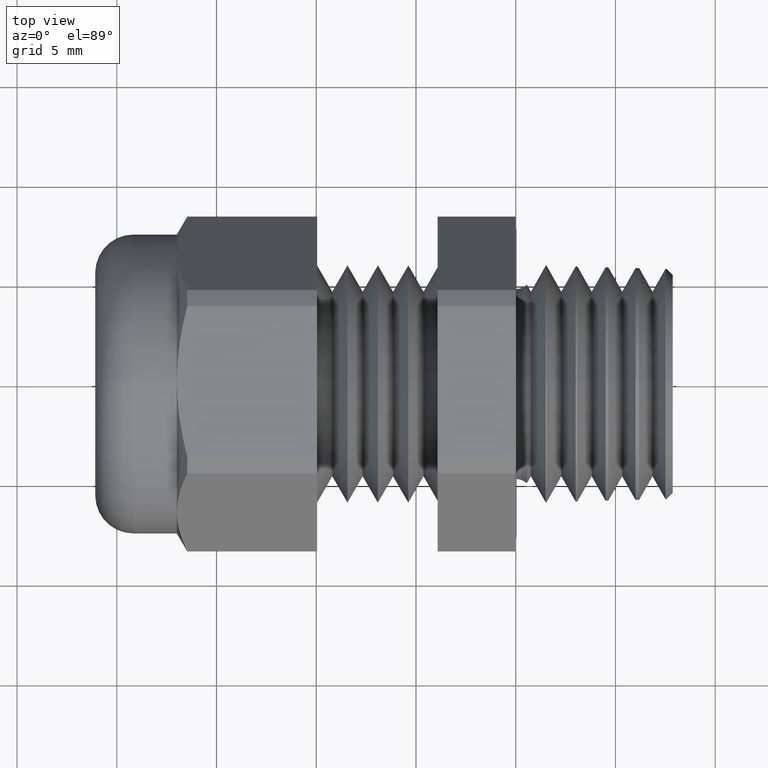
[diagram: clean part render]
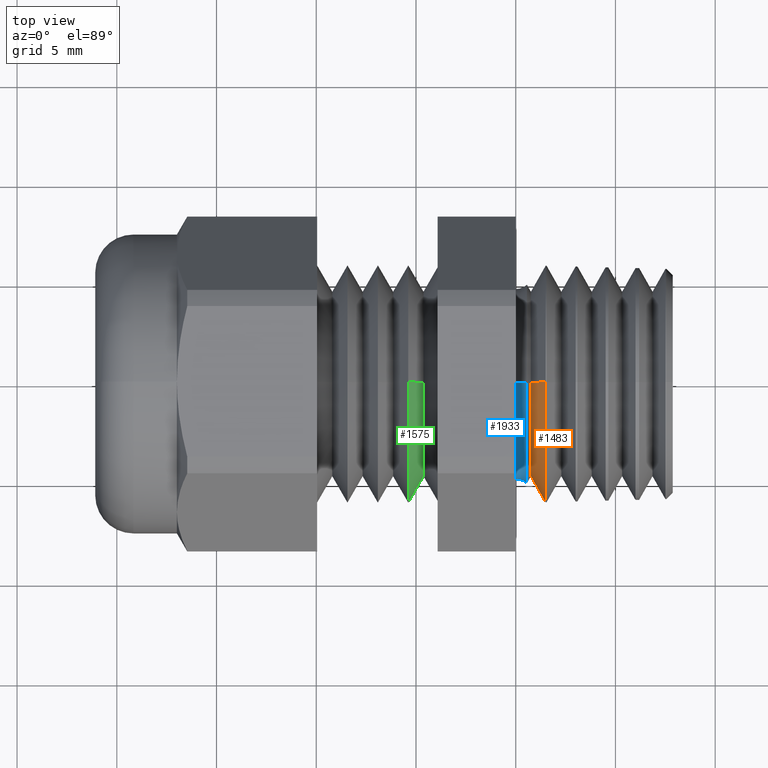
[diagram: same view with three faces highlighted in distinct colors, each labeled with its STEP entity id]
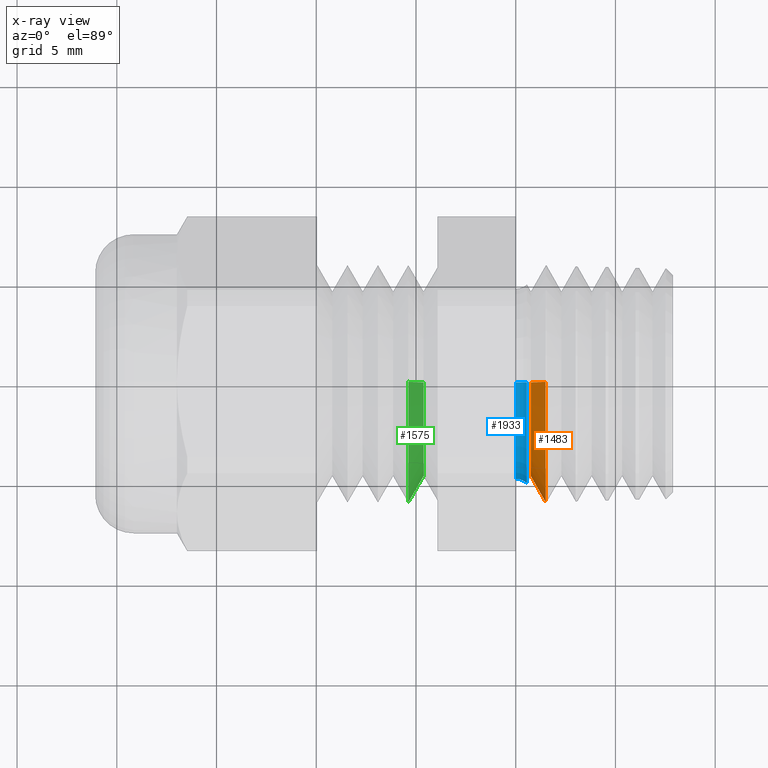
[diagram: x-ray of the same camera — body ghosted, the three highlighted faces saturated]
A machine part, top view with three faces highlighted in distinct colors.
The next image is the same camera in x-ray (body ghosted, the three faces saturated) — at least one of them is partly hidden behind the body in this view.
Their STEP definitions:

[orange] entity #1483 — the highlighted conical surface has half-angle 60 deg.
#141 = CARTESIAN_POINT ( 'NONE',  ( 0.02999998601249676000, 0.0000000000000000000, -0.1830384999999999700 ) ) ;
#585 = DIRECTION ( 'NONE',  ( 0.5000000000000003300, 0.0000000000000000000, -0.8660254037844383700 ) ) ;
#586 = VECTOR ( 'NONE', #585, 39.37007874015748100 ) ;
#587 = CARTESIAN_POINT ( 'NONE',  ( 0.02999998601249676000, 0.0000000000000000000, -0.1830384999999999700 ) ) ;
#588 = LINE ( 'NONE', #587, #586 ) ;
#648 = CARTESIAN_POINT ( 'NONE',  ( 0.02999998601249676000, 2.550270289256076500E-017, 0.1830384999999999700 ) ) ;
#778 = DIRECTION ( 'NONE',  ( 0.0000000000000000000, 0.0000000000000000000, -1.000000000000000000 ) ) ;
#779 = DIRECTION ( 'NONE',  ( -1.000000000000000000, 0.0000000000000000000, 0.0000000000000000000 ) ) ;
#780 = CARTESIAN_POINT ( 'NONE',  ( 0.05910637531212580000, 0.0000000000000000000, 0.0000000000000000000 ) ) ;
#781 = AXIS2_PLACEMENT_3D ( 'NONE', #780, #779, #778 ) ;
#782 = CIRCLE ( 'NONE', #781, 0.2334522450918377600 ) ;
#1476 = EDGE_LOOP ( 'NONE', ( #1554, #1553, #1478, #1477 ) ) ;
#1477 = ORIENTED_EDGE ( 'NONE', *, *, #2250, .T. ) ;
#1478 = ORIENTED_EDGE ( 'NONE', *, *, #2156, .T. ) ;
#1483 = ADVANCED_FACE ( 'NONE', ( #2826 ), #2825, .T. ) ;
#1553 = ORIENTED_EDGE ( 'NONE', *, *, #1582, .F. ) ;
#1554 = ORIENTED_EDGE ( 'NONE', *, *, #2102, .F. ) ;
#1582 = EDGE_CURVE ( 'NONE', #1779, #2188, #2971, .T. ) ;
#1779 = VERTEX_POINT ( 'NONE', #141 ) ;
#2095 = VERTEX_POINT ( 'NONE', #2442 ) ;
#2102 = EDGE_CURVE ( 'NONE', #2188, #2103, #2498, .T. ) ;
#2103 = VERTEX_POINT ( 'NONE', #2489 ) ;
#2156 = EDGE_CURVE ( 'NONE', #1779, #2095, #588, .T. ) ;
#2188 = VERTEX_POINT ( 'NONE', #648 ) ;
#2250 = EDGE_CURVE ( 'NONE', #2095, #2103, #782, .T. ) ;
#2442 = CARTESIAN_POINT ( 'NONE',  ( 0.05910637531212580000, 2.858965447054825100E-017, -0.2334522450918377300 ) ) ;
#2489 = CARTESIAN_POINT ( 'NONE',  ( 0.05910637531212580000, 0.0000000000000000000, 0.2334522450918377300 ) ) ;
#2490 = DIRECTION ( 'NONE',  ( 0.5000000000000003300, 1.060575238724906700E-016, 0.8660254037844383700 ) ) ;
#2491 = VECTOR ( 'NONE', #2490, 39.37007874015748100 ) ;
#2492 = CARTESIAN_POINT ( 'NONE',  ( 0.02999998601249676000, 2.241575131457327600E-017, 0.1830384999999999700 ) ) ;
#2498 = LINE ( 'NONE', #2492, #2491 ) ;
#2825 = CONICAL_SURFACE ( 'NONE', #2893, 0.1830384999999999700, 1.047197551196597400 ) ;
#2826 = FACE_OUTER_BOUND ( 'NONE', #1476, .T. ) ;
#2830 = CARTESIAN_POINT ( 'NONE',  ( 0.02999998601249676000, 0.0000000000000000000, 0.0000000000000000000 ) ) ;
#2890 = DIRECTION ( 'NONE',  ( 0.0000000000000000000, 0.0000000000000000000, -1.000000000000000000 ) ) ;
#2891 = DIRECTION ( 'NONE',  ( 1.000000000000000000, 0.0000000000000000000, 0.0000000000000000000 ) ) ;
#2893 = AXIS2_PLACEMENT_3D ( 'NONE', #2830, #2891, #2890 ) ;
#2967 = DIRECTION ( 'NONE',  ( 0.0000000000000000000, 0.0000000000000000000, 1.000000000000000000 ) ) ;
#2968 = DIRECTION ( 'NONE',  ( -1.000000000000000000, 0.0000000000000000000, 0.0000000000000000000 ) ) ;
#2969 = CARTESIAN_POINT ( 'NONE',  ( 0.02999998601249676000, 0.0000000000000000000, 0.0000000000000000000 ) ) ;
#2970 = AXIS2_PLACEMENT_3D ( 'NONE', #2969, #2968, #2967 ) ;
#2971 = CIRCLE ( 'NONE', #2970, 0.1830384999999999700 ) ;

[blue] entity #1933 — the highlighted toroidal blend (fillet) surface has major radius 5.6097 mm and minor (blend) radius 0.8255 mm.
#170 = CARTESIAN_POINT ( 'NONE',  ( 3.980102097228894500E-018, 2.306674661077043700E-017, -0.1883542800000000700 ) ) ;
#180 = CARTESIAN_POINT ( 'NONE',  ( 3.980102097228894500E-018, 0.0000000000000000000, 0.1883542800000000700 ) ) ;
#358 = CARTESIAN_POINT ( 'NONE',  ( 0.02198579858692102700, 2.411568106298652200E-017, -0.1969194798024769500 ) ) ;
#359 = DIRECTION ( 'NONE',  ( 0.0000000000000000000, -1.224646799147353700E-016, 1.000000000000000000 ) ) ;
#360 = DIRECTION ( 'NONE',  ( 0.0000000000000000000, 1.000000000000000000, 1.224646799147353200E-016 ) ) ;
#361 = CARTESIAN_POINT ( 'NONE',  ( 0.0000000000000000000, 2.704684870799933300E-017, -0.2208542800000000100 ) ) ;
#362 = AXIS2_PLACEMENT_3D ( 'NONE', #361, #360, #359 ) ;
#363 = CIRCLE ( 'NONE', #362, 0.03249999999999995900 ) ;
#412 = CARTESIAN_POINT ( 'NONE',  ( 3.980102097228893700E-018, 0.0000000000000000000, 0.0000000000000000000 ) ) ;
#413 = AXIS2_PLACEMENT_3D ( 'NONE', #412, #474, #473 ) ;
#414 = CIRCLE ( 'NONE', #413, 0.1883542800000000700 ) ;
#415 = DIRECTION ( 'NONE',  ( 0.0000000000000000000, 0.0000000000000000000, -1.000000000000000000 ) ) ;
#416 = DIRECTION ( 'NONE',  ( 0.0000000000000000000, -1.000000000000000000, 0.0000000000000000000 ) ) ;
#417 = CARTESIAN_POINT ( 'NONE',  ( 0.0000000000000000000, 0.0000000000000000000, 0.2208542800000000100 ) ) ;
#418 = AXIS2_PLACEMENT_3D ( 'NONE', #417, #416, #415 ) ;
#419 = CIRCLE ( 'NONE', #418, 0.03249999999999995900 ) ;
#420 = CARTESIAN_POINT ( 'NONE',  ( 0.02198579858692102700, 0.0000000000000000000, 0.1969194798024769500 ) ) ;
#421 = DIRECTION ( 'NONE',  ( 0.0000000000000000000, 0.0000000000000000000, 1.000000000000000000 ) ) ;
#422 = DIRECTION ( 'NONE',  ( -1.000000000000000000, 0.0000000000000000000, 0.0000000000000000000 ) ) ;
#423 = AXIS2_PLACEMENT_3D ( 'NONE', #429, #422, #421 ) ;
#424 = CIRCLE ( 'NONE', #423, 0.1969194798024769500 ) ;
#425 = DIRECTION ( 'NONE',  ( 0.0000000000000000000, 0.0000000000000000000, 1.000000000000000000 ) ) ;
#426 = DIRECTION ( 'NONE',  ( -1.000000000000000000, 0.0000000000000000000, 0.0000000000000000000 ) ) ;
#427 = CARTESIAN_POINT ( 'NONE',  ( 0.0000000000000000000, 0.0000000000000000000, 0.0000000000000000000 ) ) ;
#428 = AXIS2_PLACEMENT_3D ( 'NONE', #427, #426, #425 ) ;
#429 = CARTESIAN_POINT ( 'NONE',  ( 0.02198579858692102700, 0.0000000000000000000, 0.0000000000000000000 ) ) ;
#430 = TOROIDAL_SURFACE ( 'NONE', #428, 0.2208542800000000100, 0.03249999999999996600 ) ;
#431 = FACE_OUTER_BOUND ( 'NONE', #1934, .T. ) ;
#473 = DIRECTION ( 'NONE',  ( 0.0000000000000000000, 0.0000000000000000000, 1.000000000000000000 ) ) ;
#474 = DIRECTION ( 'NONE',  ( -1.000000000000000000, 0.0000000000000000000, 0.0000000000000000000 ) ) ;
#1796 = VERTEX_POINT ( 'NONE', #180 ) ;
#1800 = VERTEX_POINT ( 'NONE', #170 ) ;
#1901 = ORIENTED_EDGE ( 'NONE', *, *, #1942, .F. ) ;
#1902 = ORIENTED_EDGE ( 'NONE', *, *, #1903, .T. ) ;
#1903 = EDGE_CURVE ( 'NONE', #1800, #1904, #363, .T. ) ;
#1904 = VERTEX_POINT ( 'NONE', #358 ) ;
#1933 = ADVANCED_FACE ( 'NONE', ( #431 ), #430, .F. ) ;
#1934 = EDGE_LOOP ( 'NONE', ( #1901, #1902, #1936, #1939 ) ) ;
#1936 = ORIENTED_EDGE ( 'NONE', *, *, #1937, .T. ) ;
#1937 = EDGE_CURVE ( 'NONE', #1904, #1938, #424, .T. ) ;
#1938 = VERTEX_POINT ( 'NONE', #420 ) ;
#1939 = ORIENTED_EDGE ( 'NONE', *, *, #1940, .F. ) ;
#1940 = EDGE_CURVE ( 'NONE', #1796, #1938, #419, .T. ) ;
#1942 = EDGE_CURVE ( 'NONE', #1800, #1796, #414, .T. ) ;

[green] entity #1575 — the highlighted conical surface has half-angle 60 deg.
#43 = CARTESIAN_POINT ( 'NONE',  ( -0.2120833333333335400, 2.877919977996278600E-017, 0.2349999999999998200 ) ) ;
#44 = DIRECTION ( 'NONE',  ( -0.4999999999999935100, 0.0000000000000000000, 0.8660254037844422600 ) ) ;
#45 = VECTOR ( 'NONE', #44, 39.37007874015748900 ) ;
#46 = CARTESIAN_POINT ( 'NONE',  ( -0.2120833333333335400, 0.0000000000000000000, 0.2349999999999998200 ) ) ;
#51 = LINE ( 'NONE', #46, #45 ) ;
#76 = DIRECTION ( 'NONE',  ( -0.4999999999999935100, 1.060575238724911400E-016, -0.8660254037844422600 ) ) ;
#77 = VECTOR ( 'NONE', #76, 39.37007874015748900 ) ;
#78 = CARTESIAN_POINT ( 'NONE',  ( -0.2120833333333335400, 2.877919977996278000E-017, -0.2349999999999998200 ) ) ;
#79 = LINE ( 'NONE', #78, #77 ) ;
#80 = CARTESIAN_POINT ( 'NONE',  ( -0.1820833473208373400, 0.0000000000000000000, -0.1830384999999998300 ) ) ;
#85 = CARTESIAN_POINT ( 'NONE',  ( -0.1820833473208373400, 2.559747554726802000E-017, 0.1830384999999998300 ) ) ;
#96 = CARTESIAN_POINT ( 'NONE',  ( -0.2120833333333335400, 0.0000000000000000000, -0.2349999999999998200 ) ) ;
#1431 = EDGE_CURVE ( 'NONE', #1732, #1737, #1680, .T. ) ;
#1479 = ORIENTED_EDGE ( 'NONE', *, *, #1431, .T. ) ;
#1485 = ORIENTED_EDGE ( 'NONE', *, *, #1729, .T. ) ;
#1571 = ORIENTED_EDGE ( 'NONE', *, *, #1577, .F. ) ;
#1572 = ORIENTED_EDGE ( 'NONE', *, *, #1748, .F. ) ;
#1573 = EDGE_LOOP ( 'NONE', ( #1572, #1571, #1485, #1479 ) ) ;
#1575 = ADVANCED_FACE ( 'NONE', ( #2981 ), #2980, .T. ) ;
#1577 = EDGE_CURVE ( 'NONE', #1743, #1745, #2975, .T. ) ;
#1615 = DIRECTION ( 'NONE',  ( 0.0000000000000000000, 0.0000000000000000000, -1.000000000000000000 ) ) ;
#1677 = CARTESIAN_POINT ( 'NONE',  ( -0.2120833333333335400, 0.0000000000000000000, 0.0000000000000000000 ) ) ;
#1678 = AXIS2_PLACEMENT_3D ( 'NONE', #1677, #1681, #1615 ) ;
#1680 = CIRCLE ( 'NONE', #1678, 0.2349999999999998200 ) ;
#1681 = DIRECTION ( 'NONE',  ( 1.000000000000000000, 0.0000000000000000000, 0.0000000000000000000 ) ) ;
#1729 = EDGE_CURVE ( 'NONE', #1743, #1732, #51, .T. ) ;
#1732 = VERTEX_POINT ( 'NONE', #43 ) ;
#1737 = VERTEX_POINT ( 'NONE', #96 ) ;
#1743 = VERTEX_POINT ( 'NONE', #85 ) ;
#1745 = VERTEX_POINT ( 'NONE', #80 ) ;
#1748 = EDGE_CURVE ( 'NONE', #1745, #1737, #79, .T. ) ;
#2972 = DIRECTION ( 'NONE',  ( 0.0000000000000000000, 0.0000000000000000000, -1.000000000000000000 ) ) ;
#2973 = DIRECTION ( 'NONE',  ( 1.000000000000000000, 0.0000000000000000000, 0.0000000000000000000 ) ) ;
#2974 = AXIS2_PLACEMENT_3D ( 'NONE', #2979, #2973, #2972 ) ;
#2975 = CIRCLE ( 'NONE', #2974, 0.1830384999999998300 ) ;
#2976 = DIRECTION ( 'NONE',  ( 0.0000000000000000000, 0.0000000000000000000, 1.000000000000000000 ) ) ;
#2977 = DIRECTION ( 'NONE',  ( -1.000000000000000000, 0.0000000000000000000, 0.0000000000000000000 ) ) ;
#2978 = AXIS2_PLACEMENT_3D ( 'NONE', #2986, #2977, #2976 ) ;
#2979 = CARTESIAN_POINT ( 'NONE',  ( -0.1820833473208373400, 0.0000000000000000000, 0.0000000000000000000 ) ) ;
#2980 = CONICAL_SURFACE ( 'NONE', #2978, 0.2349999999999998200, 1.047197551196605200 ) ;
#2981 = FACE_OUTER_BOUND ( 'NONE', #1573, .T. ) ;
#2986 = CARTESIAN_POINT ( 'NONE',  ( -0.2120833333333335400, 0.0000000000000000000, 0.0000000000000000000 ) ) ;